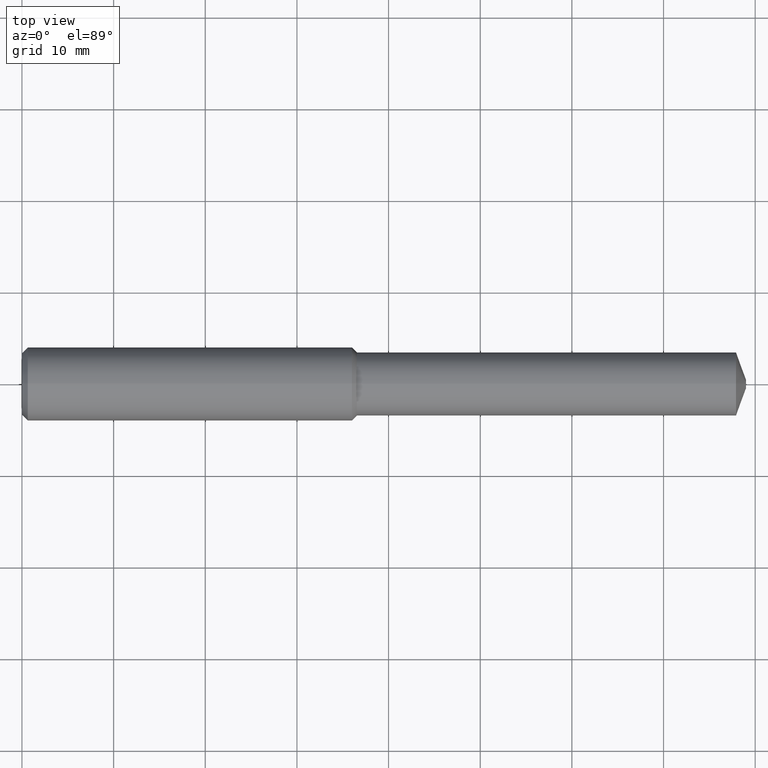
[diagram: clean part render]
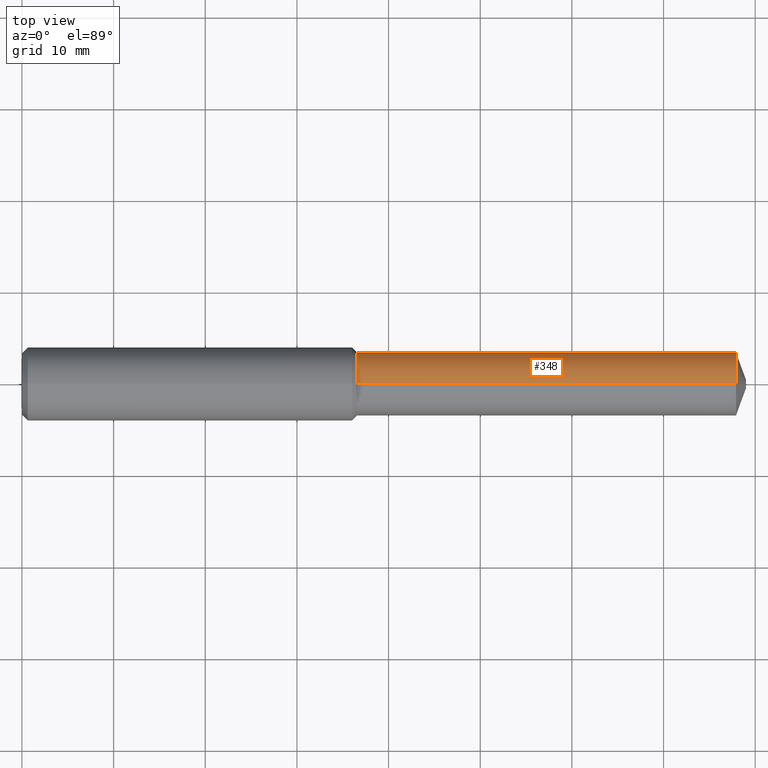
[diagram: same view with one face highlighted and labeled with its STEP entity id]
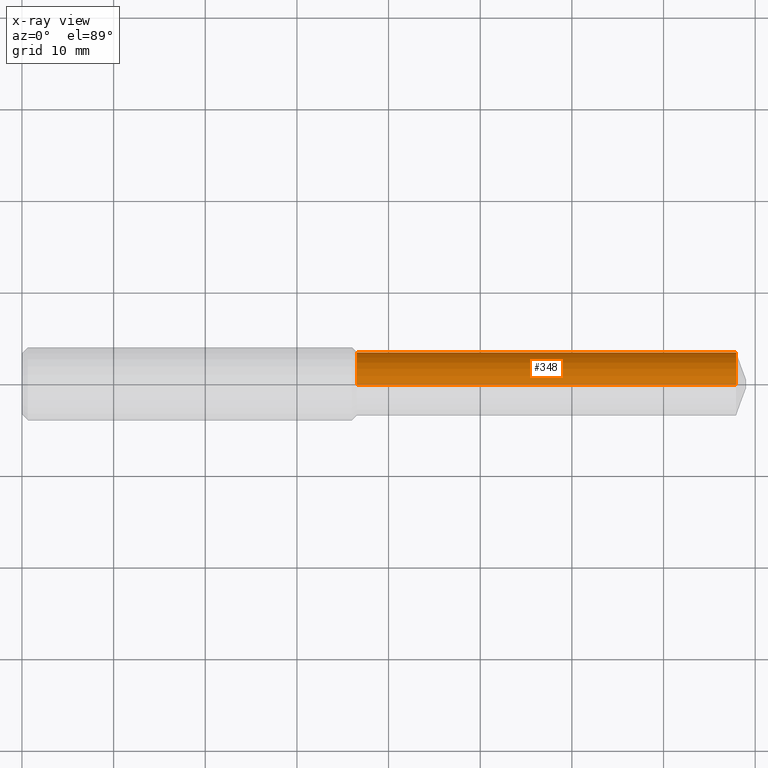
[diagram: x-ray of the same camera — body ghosted, the highlighted face saturated]
A machine part, top view. The second image highlights one B-rep face of the part: STEP entity #348.
The next image is the same camera in x-ray: the body ghosted, the highlighted face saturated — about 0% of this face is hidden behind the body in this view.
In plain terms, the highlighted cylindrical surface (edge-blend (fillet) strip) has radius 3.4544 mm, axis along (1, -0, -0).
Its self-contained STEP definition (entity closure, byte-faithful):
#4 = AXIS2_PLACEMENT_3D ( 'NONE', #306, #21, #248 ) ;
#11 = VERTEX_POINT ( 'NONE', #312 ) ;
#21 = DIRECTION ( 'NONE',  ( 1.000000000000000000, -0.000000000000000000, -0.000000000000000000 ) ) ;
#26 = CARTESIAN_POINT ( 'NONE',  ( 1.438803149606299403, 0.000000000000000000, -0.1360000000000001763 ) ) ;
#30 = LINE ( 'NONE', #173, #346 ) ;
#32 = ORIENTED_EDGE ( 'NONE', *, *, #307, .F. ) ;
#41 = VERTEX_POINT ( 'NONE', #333 ) ;
#42 = ORIENTED_EDGE ( 'NONE', *, *, #288, .T. ) ;
#55 = LINE ( 'NONE', #349, #365 ) ;
#59 = CYLINDRICAL_SURFACE ( 'NONE', #98, 0.1360000000000002873 ) ;
#88 = DIRECTION ( 'NONE',  ( 0.000000000000000000, 0.000000000000000000, -1.000000000000000000 ) ) ;
#94 = ORIENTED_EDGE ( 'NONE', *, *, #309, .F. ) ;
#98 = AXIS2_PLACEMENT_3D ( 'NONE', #341, #150, #235 ) ;
#144 = CARTESIAN_POINT ( 'NONE',  ( 1.438803149606299403, 1.665519646840403453E-17, 0.1360000000000001763 ) ) ;
#150 = DIRECTION ( 'NONE',  ( 1.000000000000000000, -0.000000000000000000, -0.000000000000000000 ) ) ;
#165 = DIRECTION ( 'NONE',  ( 1.000000000000000000, -0.000000000000000000, -0.000000000000000000 ) ) ;
#167 = CIRCLE ( 'NONE', #4, 0.1360000000000001763 ) ;
#169 = EDGE_CURVE ( 'NONE', #332, #215, #167, .T. ) ;
#173 = CARTESIAN_POINT ( 'NONE',  ( -0.03808593750000075634, 0.000000000000000000, -0.1360000000000002873 ) ) ;
#211 = AXIS2_PLACEMENT_3D ( 'NONE', #255, #320, #88 ) ;
#215 = VERTEX_POINT ( 'NONE', #144 ) ;
#228 = CIRCLE ( 'NONE', #211, 0.1360000000000003983 ) ;
#234 = FACE_OUTER_BOUND ( 'NONE', #273, .T. ) ;
#235 = DIRECTION ( 'NONE',  ( 0.000000000000000000, 0.000000000000000000, -1.000000000000000000 ) ) ;
#248 = DIRECTION ( 'NONE',  ( 0.000000000000000000, 0.000000000000000000, -1.000000000000000000 ) ) ;
#255 = CARTESIAN_POINT ( 'NONE',  ( 3.067105747711896591, 0.000000000000000000, 0.000000000000000000 ) ) ;
#273 = EDGE_LOOP ( 'NONE', ( #313, #42, #94, #32 ) ) ;
#288 = EDGE_CURVE ( 'NONE', #215, #41, #55, .T. ) ;
#306 = CARTESIAN_POINT ( 'NONE',  ( 1.438803149606299403, 0.000000000000000000, 0.000000000000000000 ) ) ;
#307 = EDGE_CURVE ( 'NONE', #332, #11, #30, .T. ) ;
#309 = EDGE_CURVE ( 'NONE', #11, #41, #228, .T. ) ;
#312 = CARTESIAN_POINT ( 'NONE',  ( 3.067105747711896591, 1.665519646840405302E-17, -0.1360000000000003983 ) ) ;
#313 = ORIENTED_EDGE ( 'NONE', *, *, #169, .T. ) ;
#320 = DIRECTION ( 'NONE',  ( 1.000000000000000000, -0.000000000000000000, -0.000000000000000000 ) ) ;
#332 = VERTEX_POINT ( 'NONE', #26 ) ;
#333 = CARTESIAN_POINT ( 'NONE',  ( 3.067105747711896591, 0.000000000000000000, 0.1360000000000003983 ) ) ;
#341 = CARTESIAN_POINT ( 'NONE',  ( -0.03808593750000075634, 0.000000000000000000, 0.000000000000000000 ) ) ;
#346 = VECTOR ( 'NONE', #165, 39.37007874015748143 ) ;
#347 = DIRECTION ( 'NONE',  ( 1.000000000000000000, -0.000000000000000000, -0.000000000000000000 ) ) ;
#348 = ADVANCED_FACE ( 'NONE', ( #234 ), #59, .T. ) ;
#349 = CARTESIAN_POINT ( 'NONE',  ( -0.03808593750000075634, 1.665519646840404069E-17, 0.1360000000000002873 ) ) ;
#365 = VECTOR ( 'NONE', #347, 39.37007874015748143 ) ;